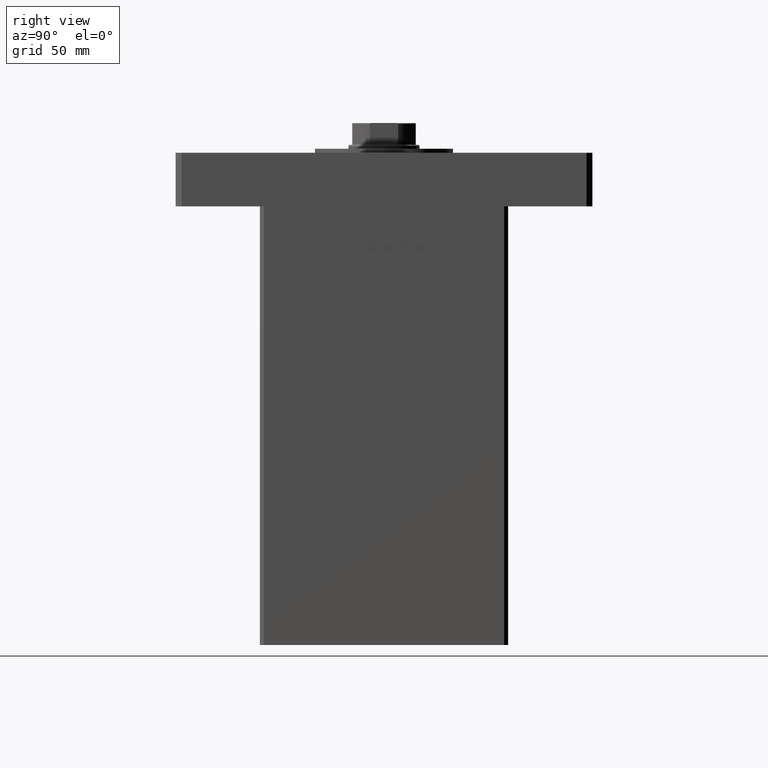
[diagram: clean part render]
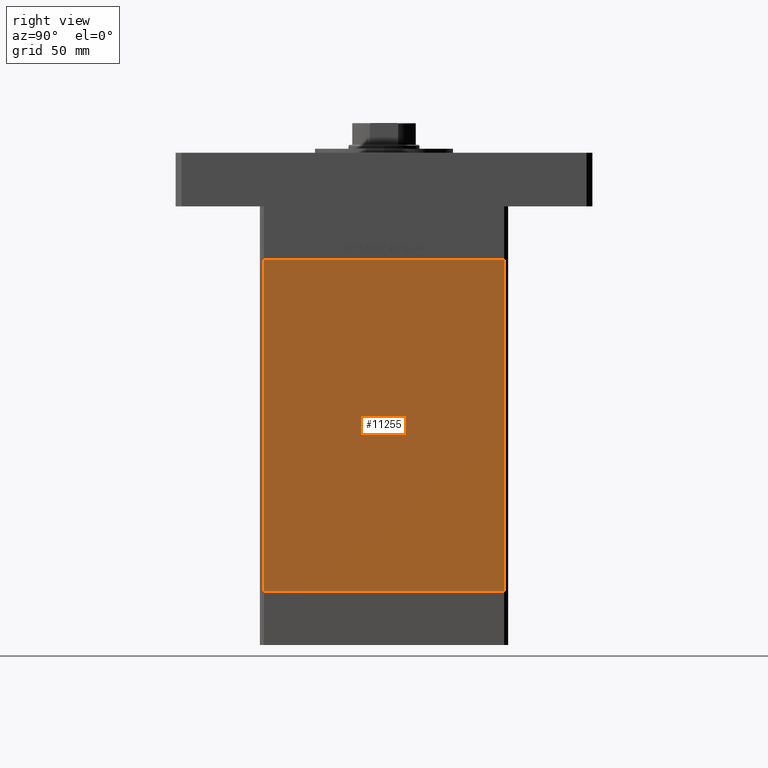
[diagram: same view with one face highlighted and labeled with its STEP entity id]
A machine part, right view. The second image highlights one B-rep face of the part: STEP entity #11255.
In plain terms, the highlighted planar face has unit normal (1, -0, 0).
Its self-contained STEP definition (entity closure, byte-faithful):
#1086 = AXIS2_PLACEMENT_3D ( 'NONE', #51466, #47695, #34774 ) ;
#1990 = VERTEX_POINT ( 'NONE', #39759 ) ;
#1998 = DIRECTION ( 'NONE',  ( -0.000000000000000000, -0.000000000000000000, -1.000000000000000000 ) ) ;
#2086 = CARTESIAN_POINT ( 'NONE',  ( 75.00000000000001421, 60.50000000000000000, 167.0000000000000000 ) ) ;
#4826 = LINE ( 'NONE', #38173, #46568 ) ;
#6102 = ORIENTED_EDGE ( 'NONE', *, *, #7661, .T. ) ;
#7661 = EDGE_CURVE ( 'NONE', #1990, #13597, #16112, .T. ) ;
#8282 = DIRECTION ( 'NONE',  ( -0.000000000000000000, -0.000000000000000000, -1.000000000000000000 ) ) ;
#11255 = ADVANCED_FACE ( 'NONE', ( #26978 ), #35304, .T. ) ;
#11681 = VECTOR ( 'NONE', #31130, 1000.000000000000000 ) ;
#13597 = VERTEX_POINT ( 'NONE', #52821 ) ;
#14027 = EDGE_CURVE ( 'NONE', #32686, #13597, #4826, .T. ) ;
#14181 = CARTESIAN_POINT ( 'NONE',  ( 75.00000000000001421, 60.50000000000000000, 167.0000000000000000 ) ) ;
#16112 = LINE ( 'NONE', #45404, #47372 ) ;
#18413 = LINE ( 'NONE', #46921, #40834 ) ;
#25276 = DIRECTION ( 'NONE',  ( -2.293849224432141861E-16, -1.000000000000000000, 0.000000000000000000 ) ) ;
#26978 = FACE_OUTER_BOUND ( 'NONE', #29485, .T. ) ;
#29485 = EDGE_LOOP ( 'NONE', ( #49446, #38849, #44522, #6102 ) ) ;
#30323 = EDGE_CURVE ( 'NONE', #36043, #32686, #18413, .T. ) ;
#31130 = DIRECTION ( 'NONE',  ( -2.293849224432141861E-16, -1.000000000000000000, 0.000000000000000000 ) ) ;
#31400 = EDGE_CURVE ( 'NONE', #36043, #1990, #38644, .T. ) ;
#32686 = VERTEX_POINT ( 'NONE', #39501 ) ;
#34774 = DIRECTION ( 'NONE',  ( 2.293849224432142354E-16, 1.000000000000000000, 0.000000000000000000 ) ) ;
#35304 = PLANE ( 'NONE',  #1086 ) ;
#36043 = VERTEX_POINT ( 'NONE', #2086 ) ;
#38173 = CARTESIAN_POINT ( 'NONE',  ( 75.00000000000001421, 60.50000000000000000, 0.000000000000000000 ) ) ;
#38644 = LINE ( 'NONE', #14181, #11681 ) ;
#38849 = ORIENTED_EDGE ( 'NONE', *, *, #30323, .F. ) ;
#39501 = CARTESIAN_POINT ( 'NONE',  ( 75.00000000000001421, 60.50000000000000000, 0.000000000000000000 ) ) ;
#39759 = CARTESIAN_POINT ( 'NONE',  ( 74.99999999999998579, -60.50000000000000000, 167.0000000000000000 ) ) ;
#40834 = VECTOR ( 'NONE', #1998, 1000.000000000000000 ) ;
#44522 = ORIENTED_EDGE ( 'NONE', *, *, #31400, .T. ) ;
#45404 = CARTESIAN_POINT ( 'NONE',  ( 74.99999999999998579, -60.50000000000000000, 167.0000000000000000 ) ) ;
#46568 = VECTOR ( 'NONE', #25276, 1000.000000000000000 ) ;
#46921 = CARTESIAN_POINT ( 'NONE',  ( 75.00000000000001421, 60.50000000000000000, 167.0000000000000000 ) ) ;
#47372 = VECTOR ( 'NONE', #8282, 1000.000000000000000 ) ;
#47695 = DIRECTION ( 'NONE',  ( 1.000000000000000000, -2.293849224432142354E-16, 0.000000000000000000 ) ) ;
#49446 = ORIENTED_EDGE ( 'NONE', *, *, #14027, .F. ) ;
#51466 = CARTESIAN_POINT ( 'NONE',  ( 75.00000000000001421, 60.50000000000000000, 167.0000000000000000 ) ) ;
#52821 = CARTESIAN_POINT ( 'NONE',  ( 74.99999999999998579, -60.50000000000000000, 0.000000000000000000 ) ) ;